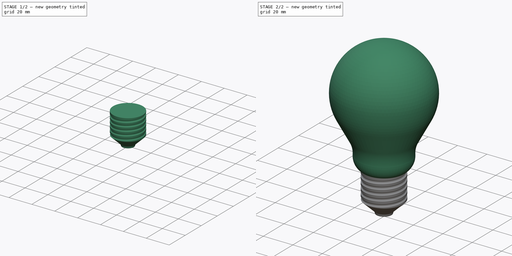
[diagram: build sequence overview — one tinted view per stage of 2, left to right]
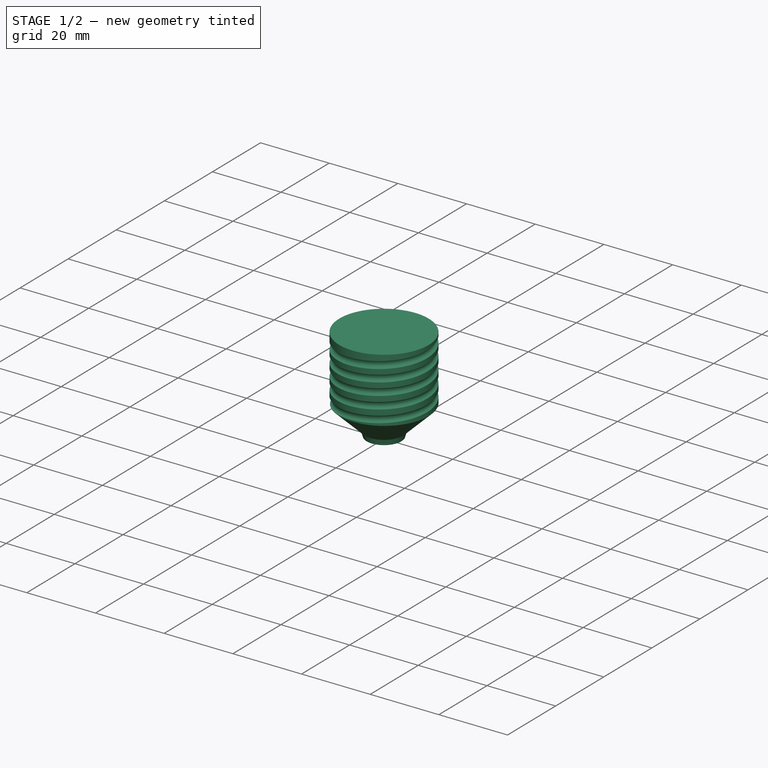
[diagram: stage 1 of 2 — iso view after this stage's code; geometry added in this stage tinted green]
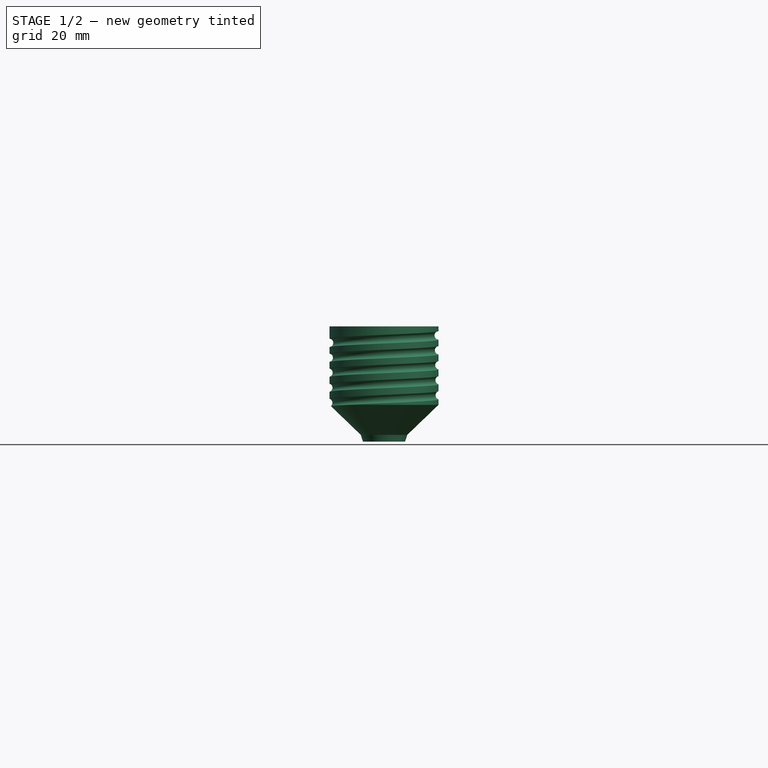
[diagram: stage 1 of 2 — front view after this stage's code; geometry added in this stage tinted green]
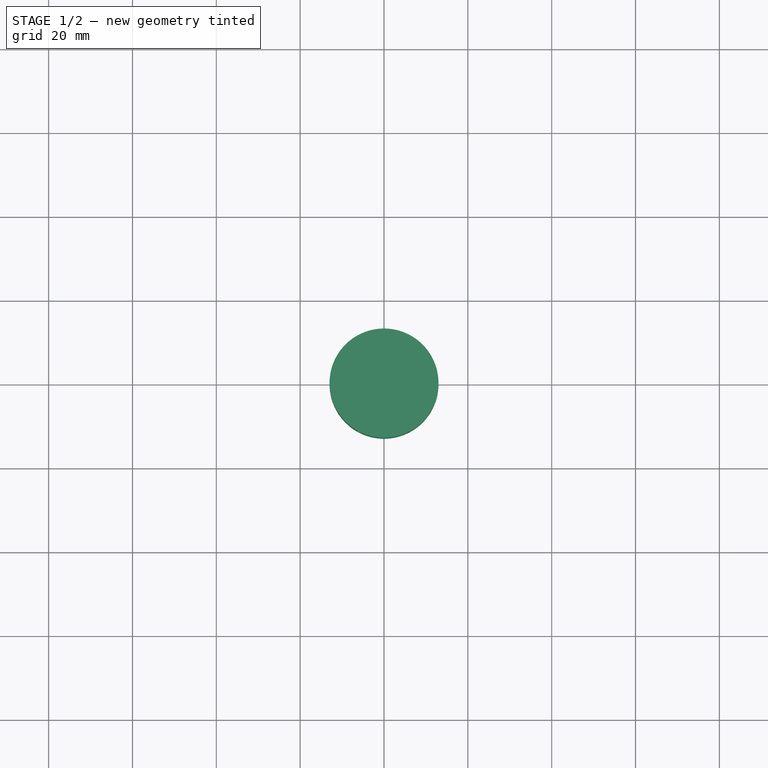
[diagram: stage 1 of 2 — top view after this stage's code; geometry added in this stage tinted green]
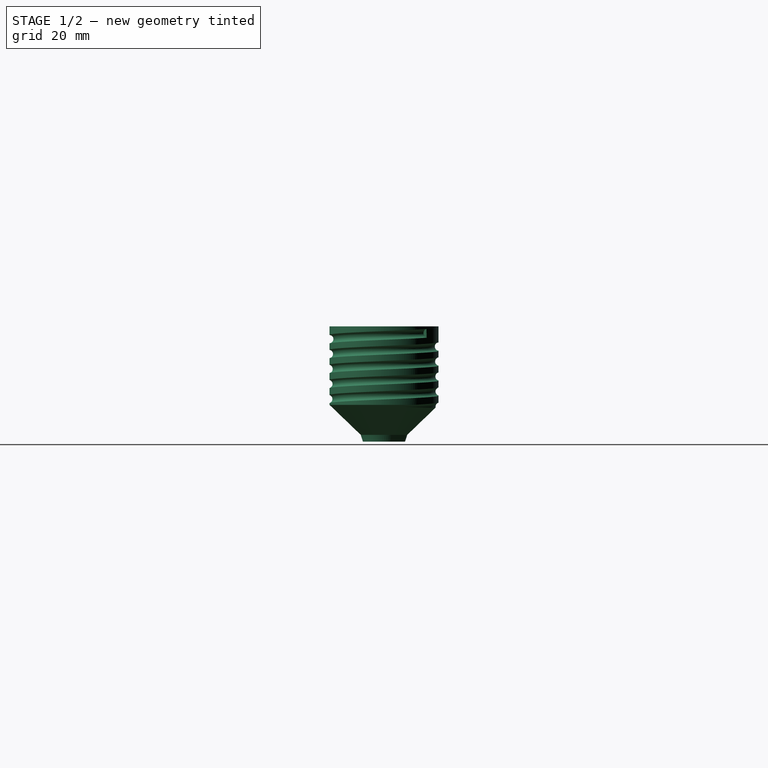
[diagram: stage 1 of 2 — right view after this stage's code; geometry added in this stage tinted green]
FCSTD DOCUMENT  (FreeCAD 0.17R13541 (Git))
Label: 灯泡
License: All rights reserved
LicenseURL: http://en.wikipedia.org/wiki/All_rights_reserved
objects: Sketcher::SketchObject×3, PartDesign::Revolution×2, PartDesign::Body×2, Image::ImagePlane×1, Part::Helix×1, PartDesign::ShapeBinder×1, PartDesign::SubtractivePipe×1
note: 13 computed .brp shape members not serialized (recipe doc carries the construction recipe); baked Part::Feature solids carry a one-line shape summary decoded from their .brp

FEATURE [PartDesign::Body] Body  label="玻璃灯泡"
  Group = -> [Sketch,Revolution]
  Origin = -> Origin
  Tip = -> Revolution
FEATURE [Sketcher::SketchObject] Sketch001
  MapMode = 5
  Placement = pos=(0,0,0) rot=(1,0,0;1.5708rad)
  Support = -> [XZ_Plane001]
  sketch-geometry (6):
    g0: LineSegment StartX=0 StartY=0 StartZ=0 EndX=13 EndY=0 EndZ=0
    g1: LineSegment StartX=13 StartY=0 StartZ=0 EndX=13 EndY=-18.7164 EndZ=0
    g2: LineSegment StartX=13 StartY=-18.7164 StartZ=0 EndX=5.5427 EndY=-25.8846 EndZ=0
    g3: LineSegment StartX=5.5427 StartY=-25.8846 StartZ=0 EndX=5.03288 EndY=-27.5 EndZ=0
    g4: LineSegment StartX=5.03288 StartY=-27.5 StartZ=0 EndX=0 EndY=-27.5 EndZ=0
    g5: LineSegment StartX=0 StartY=-27.5 StartZ=0 EndX=0 EndY=0 EndZ=0
  constraints (14):
    c: Horizontal(g0)
    c: Coincident(g0,g1)
    c: Vertical(g1)
    c: Coincident(g1,g2)
    c: Coincident(g2,g3)
    c: Coincident(g3,g4)
    c: Horizontal(g4)
    c: Coincident(g4,g5)
    c: Coincident(g5,g0)
    c: Vertical(g5)
    c: DistanceX(g0) = 13
    c: DistanceY(g0) = 0
    c: DistanceX(g4) = 0
    c: DistanceY(g4) = -27.5
FEATURE [PartDesign::Revolution] Revolution001
  Angle = 360
  Axis = (0,0,1)
  Base = (0,0,0)
  Placement = pos=(0,0,0) rot=(1,0,0;1.5708rad)
  Profile = -> Sketch001
  ReferenceAxis = -> Sketch001 [V_Axis]
  Reversed = true
FEATURE [Part::Helix] Helix  label="螺旋体"
  Angle = 0
  AttacherType = Attacher::AttachEngine3D
  Height = 18
  LocalCoord = 0
  Pitch = 3.5
  Placement = pos=(0,0,-20) rot=(0,0,1;0rad)
  Radius = 13
  Style = 1
FEATURE [Sketcher::SketchObject] Sketch002
  MapMode = 5
  Placement = pos=(0,0,0) rot=(1,0,0;1.5708rad)
  Support = -> [XZ_Plane001]
  sketch-geometry (1):
    g0: Circle CenterX=13.3497 CenterY=-20.0391 CenterZ=0 NormalX=0 NormalY=0 NormalZ=1 AngleXU=0 Radius=1.04748
FEATURE [PartDesign::ShapeBinder] CopyHelix
  Placement = pos=(0,0,-20) rot=(0,0,1;0rad)
FEATURE [PartDesign::SubtractivePipe] SubtractivePipe
  AuxilleryCurvelinear = true
  AuxillerySpineTangent = false
  BaseFeature = -> Revolution001
  Binormal = (0,0,0)
  Mode = 0
  Placement = pos=(0,0,0) rot=(1,0,0;1.5708rad)
  Profile = -> Sketch002
  Spine = -> CopyHelix [Edge1,Edge2,Edge3,Edge4,Edge5,Edge6]
  SpineTangent = false
  Transformation = 0
  Transition = 0
FEATURE [PartDesign::Body] Body001  label="金属底座"
  Group = -> [Sketch001,Revolution001,Sketch002,SubtractivePipe,CopyHelix]
  Origin = -> Origin001
  Tip = -> SubtractivePipe
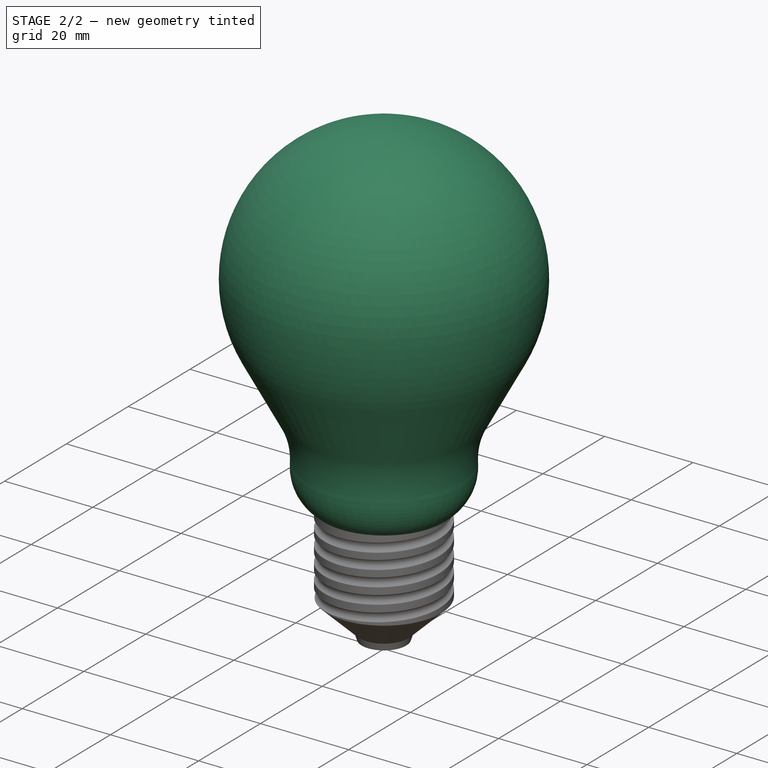
[diagram: stage 2 of 2 — iso view after this stage's code; geometry added in this stage tinted green]
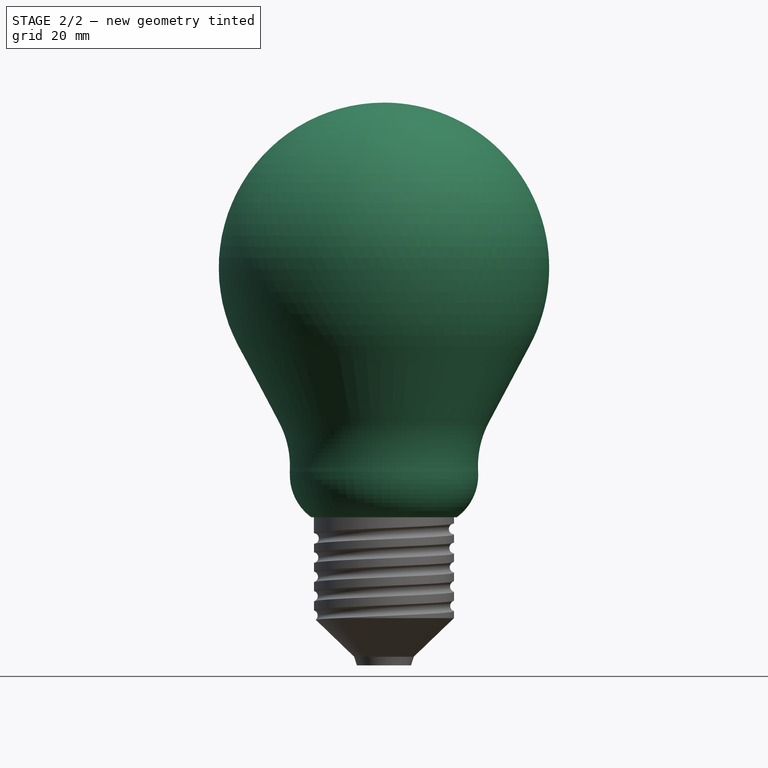
[diagram: stage 2 of 2 — front view after this stage's code; geometry added in this stage tinted green]
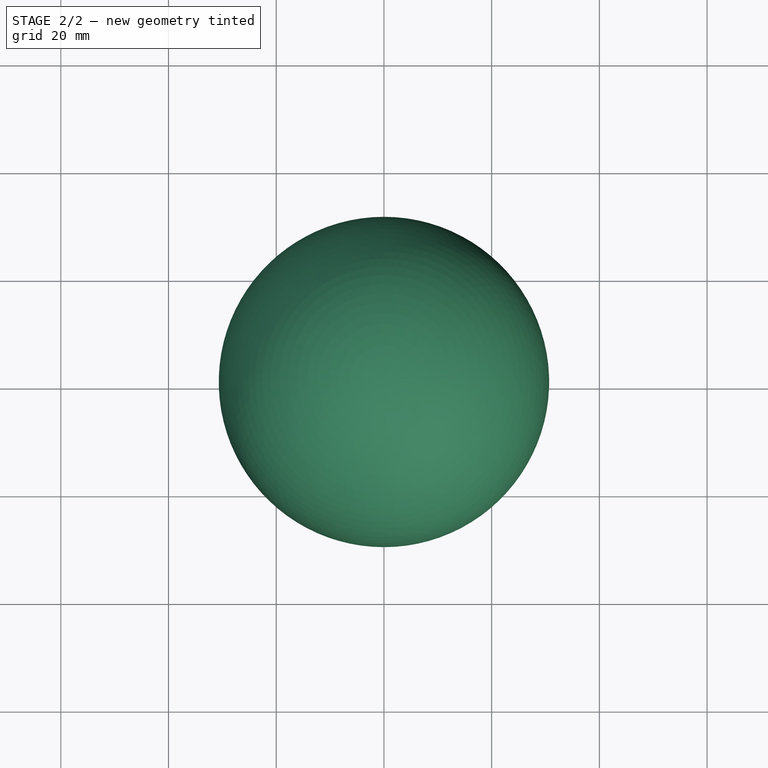
[diagram: stage 2 of 2 — top view after this stage's code; geometry added in this stage tinted green]
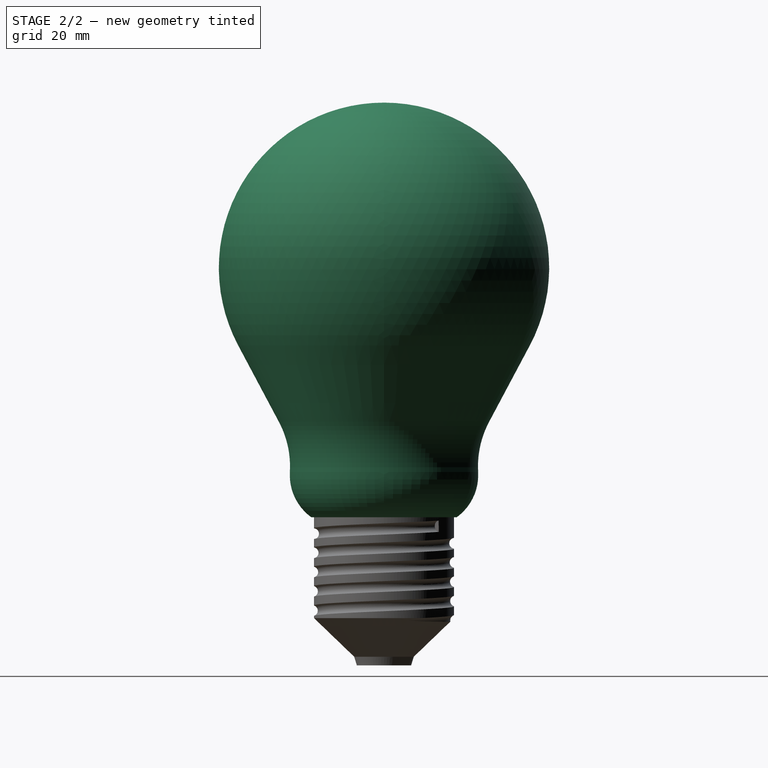
[diagram: stage 2 of 2 — right view after this stage's code; geometry added in this stage tinted green]
FEATURE [Image::ImagePlane] ImagePlane
  Placement = pos=(0,0,23.5) rot=(-1,0,0;4.71239rad)
  XSize = 81.3267
  YSize = 110.816
FEATURE [Sketcher::SketchObject] Sketch
  MapMode = 5
  Placement = pos=(0,0,0) rot=(1,0,0;1.5708rad)
  Support = -> [XZ_Plane]
  sketch-geometry (7):
    g0: LineSegment StartX=0 StartY=77 StartZ=0 EndX=0 EndY=0 EndZ=0
    g1: LineSegment StartX=0 StartY=0 StartZ=0 EndX=13 EndY=0 EndZ=0
    g2: LineSegment StartX=13 StartY=0 StartZ=0 EndX=13.501 EndY=0 EndZ=0
    g3: ArcOfCircle CenterX=7.8103 CenterY=7.84598 CenterZ=0 NormalX=0 NormalY=0 NormalZ=1 AngleXU=0 Radius=9.69242 StartAngle=5.33989 EndAngle=6.34158
    g4: ArcOfCircle CenterX=35.0977 CenterY=9.44111 CenterZ=0 NormalX=0 NormalY=0 NormalZ=1 AngleXU=0 Radius=17.6416 StartAngle=2.65209 EndAngle=3.19998
    g5: LineSegment StartX=19.5278 StartY=17.7359 StartZ=0 EndX=27.0738 EndY=31.9003 EndZ=0
    g6: ArcOfCircle CenterX=0 CenterY=46.3238 CenterZ=0 NormalX=0 NormalY=0 NormalZ=1 AngleXU=0 Radius=30.6762 StartAngle=5.79369 EndAngle=7.85398
  constraints (15):
    c: Vertical(g0)
    c: Coincident(g0,g1)
    c: Horizontal(g1)
    c: DistanceX(g1) = 13
    c: DistanceY(g1) = 0
    c: DistanceX(g0) = 0
    c: DistanceY(g0) = 77
    c: Coincident(g2,g1)
    c: Horizontal(g2)
    c: Coincident(g3,g2)
    c: Coincident(g6,g0)
    c: Perpendicular(g6,g0)
    c: Tangent(g6,g5) = -1.5708
    c: Tangent(g5,g4) = 1.5708
    c: Tangent(g4,g3) = 1.5708
FEATURE [PartDesign::Revolution] Revolution
  Angle = 360
  Axis = (0,0,1)
  Base = (0,0,0)
  Placement = pos=(0,0,0) rot=(1,0,0;1.5708rad)
  Profile = -> Sketch
  ReferenceAxis = -> Sketch [V_Axis]
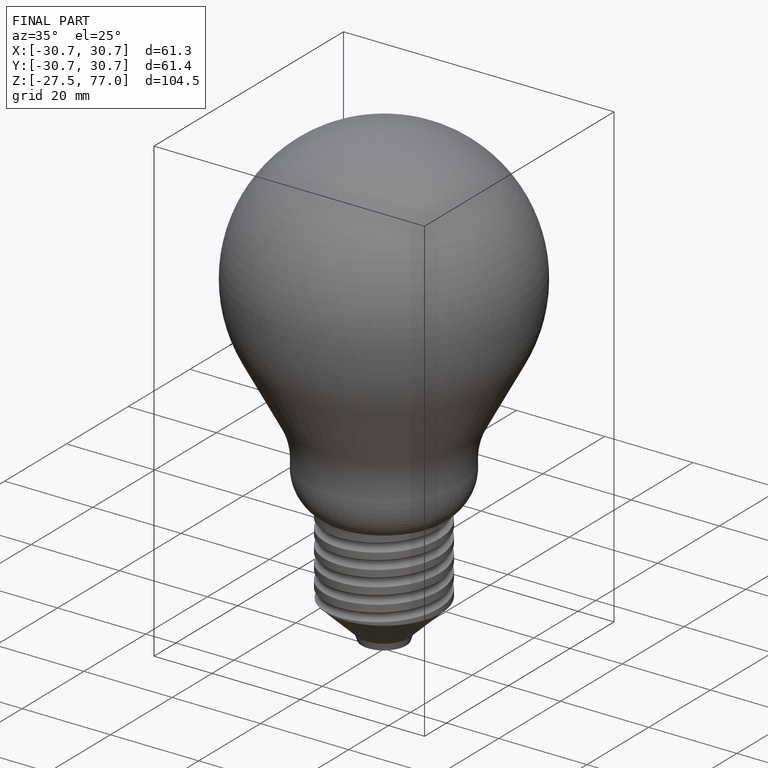
[diagram: finished part — iso view with bounding-box wireframe]
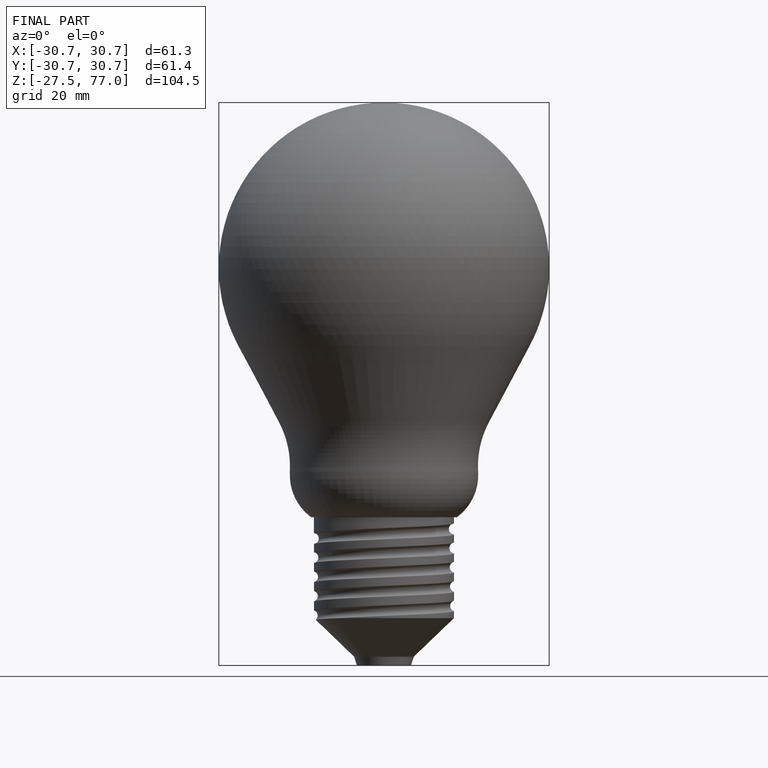
[diagram: finished part — front view with bounding-box wireframe]
